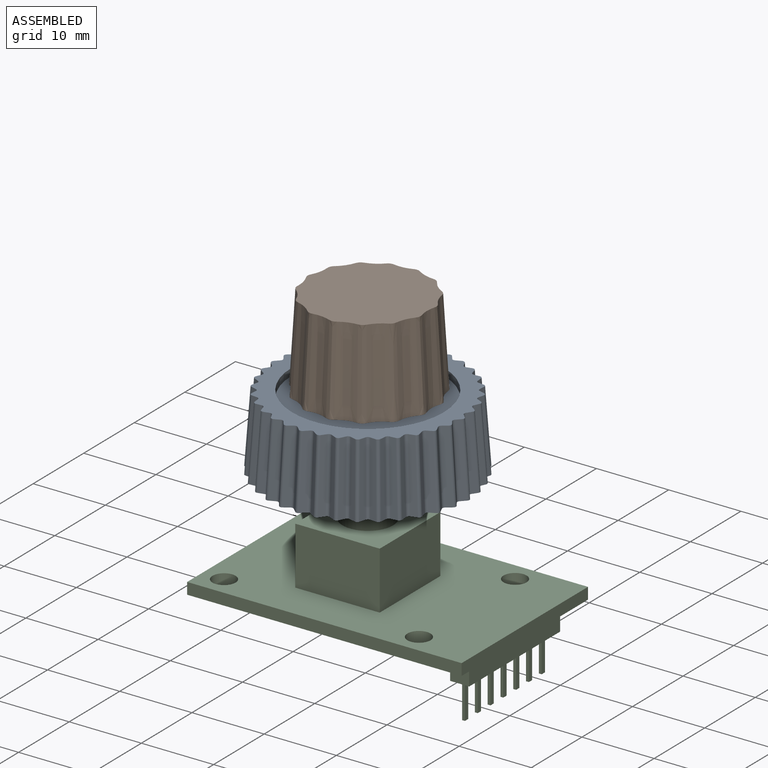
[diagram: assembled view]
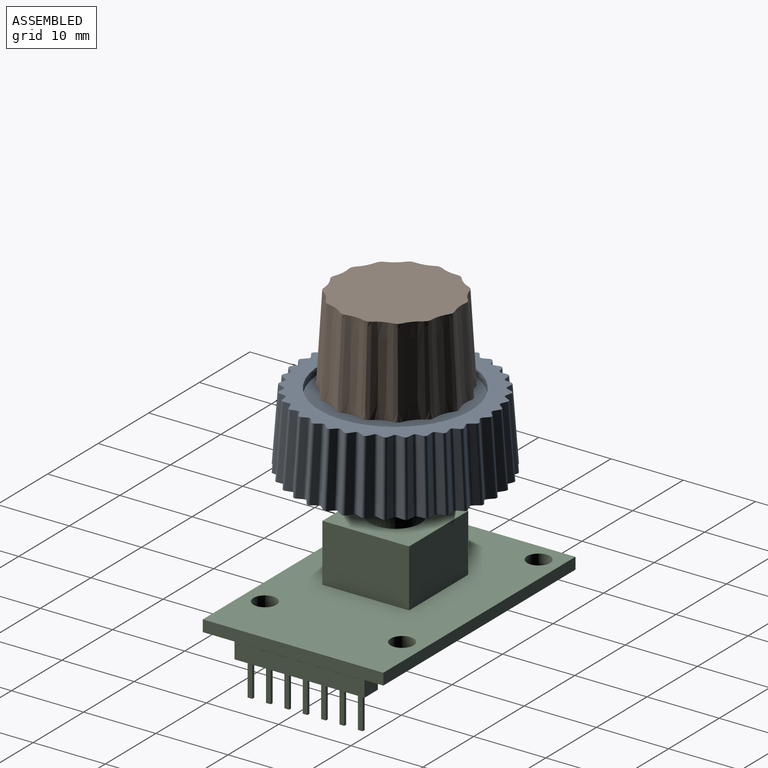
[diagram: assembled view, second angle]
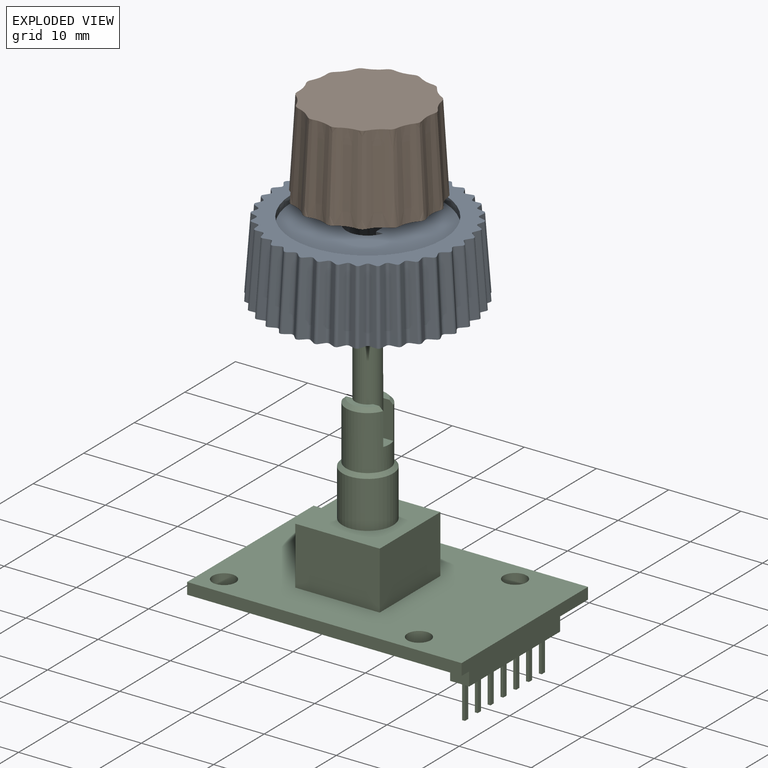
[diagram: exploded view]
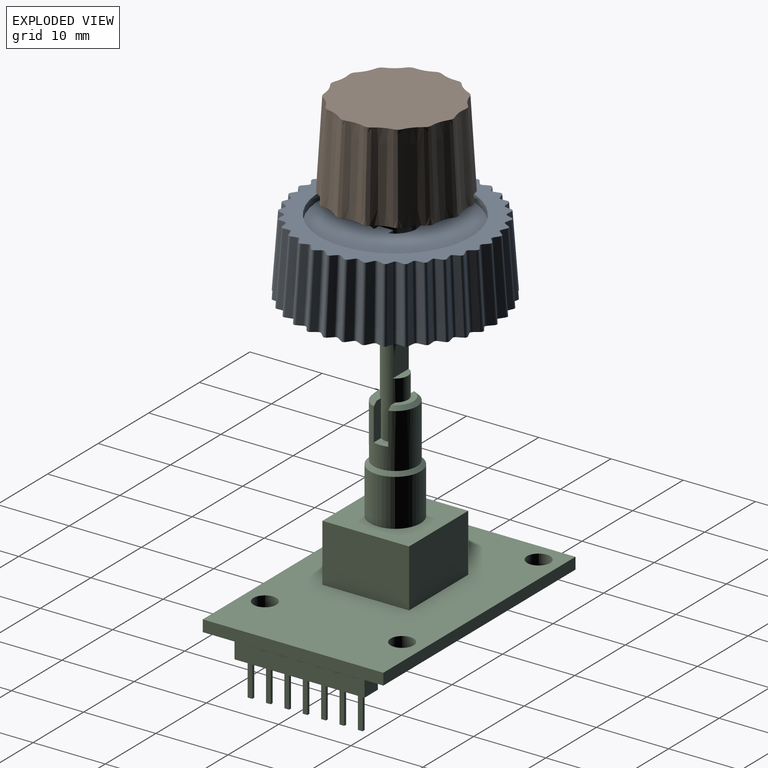
[diagram: exploded view, second angle]
ASSEMBLY  parts=3 mates=2
PART A: 159 faces, bbox 28.2x28.2x10 mm
  f0: cone r=3mm half-angle=2deg, axis (0,0,1), area 91.5mm2, adj f1,f2,f4,f5,f9,f10,f155,f157
  f1: plane 4x0.96mm, normal (0,1,0), area 3.6mm2, adj f0,f3,f9,f155
  f2: plane 4x0.96mm, normal (0,-1,0), area 3.6mm2, adj f0,f3,f9,f155
  f3: plane 4x2mm, normal (1,0,0), area 8mm2, adj f1,f2,f9,f155
  f4: plane 4x0.96mm, normal (0,1,0), area 3.6mm2, adj f0,f6,f10,f155
  f5: plane 4x0.96mm, normal (0,-1,0), area 3.6mm2, adj f0,f6,f10,f155
  f6: plane 4x2mm, normal (-1,0,0), area 8mm2, adj f4,f5,f10,f155
  f7: plane 28.16x28.16mm, normal (0,0,-1), area 537.4mm2, adj f11,f12,f13,f14,f15,f16,f17,f18
  f8: plane 26.71x26.71mm, normal (0,0,1), area 182.7mm2, adj f11,f12,f13,f14,f15,f16,f17,f18
  f9: plane 2x1mm, normal (0,0,-1), area 1.9mm2, adj f0,f1,f2,f3
  f10: plane 2x1mm, normal (0,0,-1), area 1.9mm2, adj f0,f4,f5,f6
  f11: plane 10x1.29mm, normal (0.72,0.69,0.05), area 8.5mm2, adj f7,f8,f83,f139
  f12: plane 10x1.29mm, normal (0.72,-0.69,0.05), area 8.5mm2, adj f7,f8,f84,f139
  f13: plane 10x1.17mm, normal (0.83,0.56,0.05), area 8.5mm2, adj f7,f8,f84,f138
  f14: plane 10x1.37mm, normal (0.59,0.81,0.05), area 8.5mm2, adj f7,f8,f85,f140
  f15: plane 10x1.17mm, normal (0.83,-0.56,0.05), area 8.5mm2, adj f7,f8,f83,f140
  f16: plane 10x1.41mm, normal (0.44,0.9,0.05), area 8.5mm2, adj f7,f8,f86,f141
  f17: plane 10x1.01mm, normal (0.91,-0.4,0.05), area 8.5mm2, adj f7,f8,f85,f141
  f18: plane 10x1.4mm, normal (0.28,0.96,0.05), area 8.5mm2, adj f7,f8,f87,f142
  f19: plane 10x1.15mm, normal (0.97,-0.24,0.05), area 8.5mm2, adj f7,f8,f86,f142
  f20: plane 10x1.36mm, normal (0.11,0.99,0.05), area 8.5mm2, adj f7,f8,f88,f143
  f21: plane 10x1.27mm, normal (1,-0.07,0.05), area 8.5mm2, adj f7,f8,f87,f143
  f22: plane 10x1.27mm, normal (-0.07,1,0.05), area 8.5mm2, adj f7,f8,f89,f144
  f23: plane 10x1.36mm, normal (0.99,0.11,0.05), area 8.5mm2, adj f7,f8,f88,f144
  f24: plane 10x1.15mm, normal (-0.24,0.97,0.05), area 8.5mm2, adj f7,f8,f90,f145
  f25: plane 10x1.4mm, normal (0.96,0.28,0.05), area 8.5mm2, adj f7,f8,f89,f145
  f26: plane 10x1.01mm, normal (-0.4,0.91,0.05), area 8.5mm2, adj f7,f8,f91,f146
  f27: plane 10x1.41mm, normal (0.9,0.44,0.05), area 8.5mm2, adj f7,f8,f90,f146
  f28: plane 10x1.17mm, normal (-0.56,0.83,0.05), area 8.5mm2, adj f7,f8,f92,f147
  f29: plane 10x1.37mm, normal (0.81,0.59,0.05), area 8.5mm2, adj f7,f8,f91,f147
  f30: plane 10x1.29mm, normal (-0.69,0.72,0.05), area 8.5mm2, adj f7,f8,f93,f148
  f31: plane 10x1.29mm, normal (0.69,0.72,0.05), area 8.5mm2, adj f7,f8,f92,f148
  f32: plane 10x1.37mm, normal (-0.81,0.59,0.05), area 8.5mm2, adj f7,f8,f94,f149
  f33: plane 10x1.17mm, normal (0.56,0.83,0.05), area 8.5mm2, adj f7,f8,f93,f149
  f34: plane 10x1.41mm, normal (-0.9,0.44,0.05), area 8.5mm2, adj f7,f8,f95,f150
  f35: plane 10x1.01mm, normal (0.4,0.91,0.05), area 8.5mm2, adj f7,f8,f94,f150
  f36: plane 10x1.4mm, normal (-0.96,0.28,0.05), area 8.5mm2, adj f7,f8,f96,f151
  f37: plane 10x1.15mm, normal (0.24,0.97,0.05), area 8.5mm2, adj f7,f8,f95,f151
  f38: plane 10x1.36mm, normal (-0.99,0.11,0.05), area 8.5mm2, adj f7,f8,f97,f152
  f39: plane 10x1.27mm, normal (0.07,1,0.05), area 8.5mm2, adj f7,f8,f96,f152
  f40: plane 10x1.27mm, normal (-1,-0.07,0.05), area 8.5mm2, adj f7,f8,f98,f153
  f41: plane 10x1.36mm, normal (-0.11,0.99,0.05), area 8.5mm2, adj f7,f8,f97,f153
  f42: plane 10x1.15mm, normal (-0.97,-0.24,0.05), area 8.5mm2, adj f7,f8,f99,f154
  f43: plane 10x1.4mm, normal (-0.28,0.96,0.05), area 8.5mm2, adj f7,f8,f98,f154
  f44: plane 10x1.01mm, normal (-0.91,-0.4,0.05), area 8.5mm2, adj f7,f8,f100,f119
  f45: plane 10x1.41mm, normal (-0.44,0.9,0.05), area 8.5mm2, adj f7,f8,f99,f119
  f46: plane 10x1.17mm, normal (-0.83,-0.56,0.05), area 8.5mm2, adj f7,f8,f101,f120
  f47: plane 10x1.37mm, normal (-0.59,0.81,0.05), area 8.5mm2, adj f7,f8,f100,f120
  f48: plane 10x1.29mm, normal (-0.72,-0.69,0.05), area 8.5mm2, adj f7,f8,f102,f121
  f49: plane 10x1.29mm, normal (-0.72,0.69,0.05), area 8.5mm2, adj f7,f8,f101,f121
  f50: plane 10x1.37mm, normal (-0.59,-0.81,0.05), area 8.5mm2, adj f7,f8,f103,f122
  f51: plane 10x1.17mm, normal (-0.83,0.56,0.05), area 8.5mm2, adj f7,f8,f102,f122
  f52: plane 10x1.41mm, normal (-0.44,-0.9,0.05), area 8.5mm2, adj f7,f8,f104,f123
  f53: plane 10x1.01mm, normal (-0.91,0.4,0.05), area 8.5mm2, adj f7,f8,f103,f123
  f54: plane 10x1.4mm, normal (-0.28,-0.96,0.05), area 8.5mm2, adj f7,f8,f105,f124
  f55: plane 10x1.15mm, normal (-0.97,0.24,0.05), area 8.5mm2, adj f7,f8,f104,f124
  f56: plane 10x1.36mm, normal (-0.11,-0.99,0.05), area 8.5mm2, adj f7,f8,f106,f125
  f57: plane 10x1.27mm, normal (-1,0.07,0.05), area 8.5mm2, adj f7,f8,f105,f125
  f58: plane 10x1.27mm, normal (0.07,-1,0.05), area 8.5mm2, adj f7,f8,f107,f126
  f59: plane 10x1.36mm, normal (-0.99,-0.11,0.05), area 8.5mm2, adj f7,f8,f106,f126
  f60: plane 10x1.15mm, normal (0.24,-0.97,0.05), area 8.5mm2, adj f7,f8,f108,f127
  f61: plane 10x1.4mm, normal (-0.96,-0.28,0.05), area 8.5mm2, adj f7,f8,f107,f127
  f62: plane 10x1.01mm, normal (0.4,-0.91,0.05), area 8.5mm2, adj f7,f8,f109,f128
  f63: plane 10x1.41mm, normal (-0.9,-0.44,0.05), area 8.5mm2, adj f7,f8,f108,f128
  f64: plane 10x1.17mm, normal (0.56,-0.83,0.05), area 8.5mm2, adj f7,f8,f110,f129
  f65: plane 10x1.37mm, normal (-0.81,-0.59,0.05), area 8.5mm2, adj f7,f8,f109,f129
  f66: plane 10x1.29mm, normal (0.69,-0.72,0.05), area 8.5mm2, adj f7,f8,f111,f130
  f67: plane 10x1.29mm, normal (-0.69,-0.72,0.05), area 8.5mm2, adj f7,f8,f110,f130
  f68: plane 10x1.37mm, normal (0.81,-0.59,0.05), area 8.5mm2, adj f7,f8,f112,f131
  f69: plane 10x1.17mm, normal (-0.56,-0.83,0.05), area 8.5mm2, adj f7,f8,f111,f131
  f70: plane 10x1.41mm, normal (0.9,-0.44,0.05), area 8.5mm2, adj f7,f8,f113,f132
  f71: plane 10x1.01mm, normal (-0.4,-0.91,0.05), area 8.5mm2, adj f7,f8,f112,f132
  f72: plane 10x1.4mm, normal (0.96,-0.28,0.05), area 8.5mm2, adj f7,f8,f114,f133
  f73: plane 10x1.15mm, normal (-0.24,-0.97,0.05), area 8.5mm2, adj f7,f8,f113,f133
  f74: plane 10x1.36mm, normal (0.99,-0.11,0.05), area 8.5mm2, adj f7,f8,f115,f134
  f75: plane 10x1.27mm, normal (-0.07,-1,0.05), area 8.5mm2, adj f7,f8,f114,f134
  f76: plane 10x1.27mm, normal (1,0.07,0.05), area 8.5mm2, adj f7,f8,f116,f135
  f77: plane 10x1.36mm, normal (0.11,-0.99,0.05), area 8.5mm2, adj f7,f8,f115,f135
  f78: plane 10x1.15mm, normal (0.97,0.24,0.05), area 8.5mm2, adj f7,f8,f117,f136
  f79: plane 10x1.4mm, normal (0.28,-0.96,0.05), area 8.5mm2, adj f7,f8,f116,f136
  f80: plane 10x1.01mm, normal (0.91,0.4,0.05), area 8.5mm2, adj f7,f8,f118,f137
  f81: plane 10x1.41mm, normal (0.44,-0.9,0.05), area 8.5mm2, adj f7,f8,f117,f137
  f82: plane 10x1.37mm, normal (0.59,-0.81,0.05), area 8.5mm2, adj f7,f8,f118,f138
  f83: cylinder r=0.4mm len=10.01mm, axis (0.07,0.01,-1), area 5.4mm2, adj f7,f8,f11,f15
  f84: cylinder r=0.4mm len=10.01mm, axis (-0.07,0.01,1), area 5.4mm2, adj f7,f8,f12,f13
  f85: cylinder r=0.4mm len=10.01mm, axis (0.06,0.02,-1), area 5.4mm2, adj f7,f8,f14,f17
  f86: cylinder r=0.4mm len=10.01mm, axis (0.06,0.03,-1), area 5.4mm2, adj f7,f8,f16,f19
  f87: cylinder r=0.4mm len=10.01mm, axis (0.06,0.04,-1), area 5.4mm2, adj f7,f8,f18,f21
  f88: cylinder r=0.4mm len=10.01mm, axis (0.05,0.05,-1), area 5.4mm2, adj f7,f8,f20,f23
  f89: cylinder r=0.4mm len=10.01mm, axis (0.04,0.06,-1), area 5.4mm2, adj f7,f8,f22,f25
  f90: cylinder r=0.4mm len=10.01mm, axis (0.03,0.06,-1), area 5.4mm2, adj f7,f8,f24,f27
  f91: cylinder r=0.4mm len=10.01mm, axis (0.02,0.06,-1), area 5.4mm2, adj f7,f8,f26,f29
  f92: cylinder r=0.4mm len=10.01mm, axis (0.01,0.07,-1), area 5.4mm2, adj f7,f8,f28,f31
  f93: cylinder r=0.4mm len=10.01mm, axis (-0.01,0.07,-1), area 5.4mm2, adj f7,f8,f30,f33
  f94: cylinder r=0.4mm len=10.01mm, axis (-0.02,0.06,-1), area 5.4mm2, adj f7,f8,f32,f35
  f95: cylinder r=0.4mm len=10.01mm, axis (-0.03,0.06,-1), area 5.4mm2, adj f7,f8,f34,f37
  f96: cylinder r=0.4mm len=10.01mm, axis (-0.04,0.06,-1), area 5.4mm2, adj f7,f8,f36,f39
  f97: cylinder r=0.4mm len=10.01mm, axis (-0.05,0.05,-1), area 5.4mm2, adj f7,f8,f38,f41
  f98: cylinder r=0.4mm len=10.01mm, axis (-0.06,0.04,-1), area 5.4mm2, adj f7,f8,f40,f43
  f99: cylinder r=0.4mm len=10.01mm, axis (-0.06,0.03,-1), area 5.4mm2, adj f7,f8,f42,f45
  f100: cylinder r=0.4mm len=10.01mm, axis (-0.06,0.02,-1), area 5.4mm2, adj f7,f8,f44,f47
  f101: cylinder r=0.4mm len=10.01mm, axis (-0.07,0.01,-1), area 5.4mm2, adj f7,f8,f46,f49
  f102: cylinder r=0.4mm len=10.01mm, axis (-0.07,-0.01,-1), area 5.4mm2, adj f7,f8,f48,f51
  f103: cylinder r=0.4mm len=10.01mm, axis (-0.06,-0.02,-1), area 5.4mm2, adj f7,f8,f50,f53
  f104: cylinder r=0.4mm len=10.01mm, axis (-0.06,-0.03,-1), area 5.4mm2, adj f7,f8,f52,f55
  f105: cylinder r=0.4mm len=10.01mm, axis (-0.06,-0.04,-1), area 5.4mm2, adj f7,f8,f54,f57
  f106: cylinder r=0.4mm len=10.01mm, axis (-0.05,-0.05,-1), area 5.4mm2, adj f7,f8,f56,f59
  f107: cylinder r=0.4mm len=10.01mm, axis (-0.04,-0.06,-1), area 5.4mm2, adj f7,f8,f58,f61
  f108: cylinder r=0.4mm len=10.01mm, axis (-0.03,-0.06,-1), area 5.4mm2, adj f7,f8,f60,f63
  f109: cylinder r=0.4mm len=10.01mm, axis (-0.02,-0.06,-1), area 5.4mm2, adj f7,f8,f62,f65
  f110: cylinder r=0.4mm len=10.01mm, axis (-0.01,-0.07,-1), area 5.4mm2, adj f7,f8,f64,f67
  f111: cylinder r=0.4mm len=10.01mm, axis (0.01,-0.07,-1), area 5.4mm2, adj f7,f8,f66,f69
  f112: cylinder r=0.4mm len=10.01mm, axis (0.02,-0.06,-1), area 5.4mm2, adj f7,f8,f68,f71
  f113: cylinder r=0.4mm len=10.01mm, axis (0.03,-0.06,-1), area 5.4mm2, adj f7,f8,f70,f73
  f114: cylinder r=0.4mm len=10.01mm, axis (0.04,-0.06,-1), area 5.4mm2, adj f7,f8,f72,f75
  f115: cylinder r=0.4mm len=10.01mm, axis (0.05,-0.05,-1), area 5.4mm2, adj f7,f8,f74,f77
  f116: cylinder r=0.4mm len=10.01mm, axis (0.06,-0.04,-1), area 5.4mm2, adj f7,f8,f76,f79
  f117: cylinder r=0.4mm len=10.01mm, axis (0.06,-0.03,-1), area 5.4mm2, adj f7,f8,f78,f81
  f118: cylinder r=0.4mm len=10.01mm, axis (0.06,-0.02,-1), area 5.4mm2, adj f7,f8,f80,f82
  f119: cylinder r=0.4mm len=10.01mm, axis (0.07,-0.02,1), area 6.1mm2, adj f7,f8,f44,f45
  f120: cylinder r=0.4mm len=10.01mm, axis (0.07,-0.01,1), area 6.1mm2, adj f7,f8,f46,f47
  f121: cylinder r=0.4mm len=10.01mm, axis (0.07,0,1), area 6.1mm2, adj f7,f8,f48,f49
  f122: cylinder r=0.4mm len=10.01mm, axis (0.07,0.01,1), area 6.1mm2, adj f7,f8,f50,f51
  f123: cylinder r=0.4mm len=10.01mm, axis (0.07,0.02,1), area 6.1mm2, adj f7,f8,f52,f53
  f124: cylinder r=0.4mm len=10.01mm, axis (0.06,0.04,1), area 6.1mm2, adj f7,f8,f54,f55
  f125: cylinder r=0.4mm len=10.01mm, axis (0.06,0.05,1), area 6.1mm2, adj f7,f8,f56,f57
  f126: cylinder r=0.4mm len=10.01mm, axis (0.05,0.06,1), area 6.1mm2, adj f7,f8,f58,f59
  f127: cylinder r=0.4mm len=10.01mm, axis (0.04,0.06,1), area 6.1mm2, adj f7,f8,f60,f61
  f128: cylinder r=0.4mm len=10.01mm, axis (0.02,0.07,1), area 6.1mm2, adj f7,f8,f62,f63
  f129: cylinder r=0.4mm len=10.01mm, axis (0.01,0.07,1), area 6.1mm2, adj f7,f8,f64,f65
  f130: cylinder r=0.4mm len=10.01mm, axis (0,0.07,1), area 6.1mm2, adj f7,f8,f66,f67
  f131: cylinder r=0.4mm len=10.01mm, axis (-0.01,0.07,1), area 6.1mm2, adj f7,f8,f68,f69
  f132: cylinder r=0.4mm len=10.01mm, axis (-0.02,0.07,1), area 6.1mm2, adj f7,f8,f70,f71
  f133: cylinder r=0.4mm len=10.01mm, axis (-0.04,0.06,1), area 6.1mm2, adj f7,f8,f72,f73
  f134: cylinder r=0.4mm len=10.01mm, axis (-0.05,0.06,1), area 6.1mm2, adj f7,f8,f74,f75
  f135: cylinder r=0.4mm len=10.01mm, axis (-0.06,0.05,1), area 6.1mm2, adj f7,f8,f76,f77
  f136: cylinder r=0.4mm len=10.01mm, axis (-0.06,0.04,1), area 6.1mm2, adj f7,f8,f78,f79
  f137: cylinder r=0.4mm len=10.01mm, axis (-0.07,0.02,1), area 6.1mm2, adj f7,f8,f80,f81
  f138: cylinder r=0.4mm len=10.01mm, axis (-0.07,0.01,1), area 6.1mm2, adj f7,f8,f13,f82
  f139: cylinder r=0.4mm len=10.01mm, axis (-0.07,0,1), area 6.1mm2, adj f7,f8,f11,f12
  f140: cylinder r=0.4mm len=10.01mm, axis (-0.07,-0.01,1), area 6.1mm2, adj f7,f8,f14,f15
  f141: cylinder r=0.4mm len=10.01mm, axis (-0.07,-0.02,1), area 6.1mm2, adj f7,f8,f16,f17
  f142: cylinder r=0.4mm len=10.01mm, axis (-0.06,-0.04,1), area 6.1mm2, adj f7,f8,f18,f19
  f143: cylinder r=0.4mm len=10.01mm, axis (-0.06,-0.05,1), area 6.1mm2, adj f7,f8,f20,f21
  f144: cylinder r=0.4mm len=10.01mm, axis (-0.05,-0.06,1), area 6.1mm2, adj f7,f8,f22,f23
  f145: cylinder r=0.4mm len=10.01mm, axis (-0.04,-0.06,1), area 6.1mm2, adj f7,f8,f24,f25
  f146: cylinder r=0.4mm len=10.01mm, axis (-0.02,-0.07,1), area 6.1mm2, adj f7,f8,f26,f27
  f147: cylinder r=0.4mm len=10.01mm, axis (-0.01,-0.07,1), area 6.1mm2, adj f7,f8,f28,f29
  f148: cylinder r=0.4mm len=10.01mm, axis (0,-0.07,1), area 6.1mm2, adj f7,f8,f30,f31
  f149: cylinder r=0.4mm len=10.01mm, axis (0.01,-0.07,1), area 6.1mm2, adj f7,f8,f32,f33
  f150: cylinder r=0.4mm len=10.01mm, axis (0.02,-0.07,1), area 6.1mm2, adj f7,f8,f34,f35
  f151: cylinder r=0.4mm len=10.01mm, axis (0.04,-0.06,1), area 6.1mm2, adj f7,f8,f36,f37
  f152: cylinder r=0.4mm len=10.01mm, axis (0.05,-0.06,1), area 6.1mm2, adj f7,f8,f38,f39
  f153: cylinder r=0.4mm len=10.01mm, axis (0.06,-0.05,1), area 6.1mm2, adj f7,f8,f40,f41
  f154: cylinder r=0.4mm len=10.01mm, axis (0.06,-0.04,1), area 6.1mm2, adj f7,f8,f42,f43
  f155: plane 21x21mm, normal (0,0,1), area 323.1mm2, adj f0,f1,f2,f3,f4,f5,f6,f156
  f156: cylinder r=10.5mm len=21mm, axis (0,0,1), area 66mm2, adj f8,f155
  f157: plane 8x8mm, normal (0,0,-1), area 26.4mm2, adj f0,f158
  f158: cylinder r=4mm len=8mm, axis (0,0,-1), area 75.4mm2, adj f7,f157
PART B: 37 faces, bbox 19.1x19.2x20.3 mm
  f0: plane 18.29x18.2mm, normal (0,0,-1), area 239.4mm2, adj f1,f6,f7,f8,f9,f10,f11,f12
  f1: cylinder r=1.75mm len=8.5mm, axis (0,0,-1), area 67.8mm2, adj f0,f3,f4,f5
  f2: plane 2.5x2mm, normal (0,0,-1), area 4.2mm2, adj f3,f5
  f3: cone r=1.25mm half-angle=45deg, axis (0,0,-1), area 4.5mm2, adj f1,f2,f5
  f4: plane 3.16x1mm, normal (0,0,-1), area 2.3mm2, adj f1,f5
  f5: plane 7.06x3.22mm, normal (0,-1,0), area 21.9mm2, adj f1,f2,f3,f4
  f6: cone r=4mm half-angle=3deg, axis (0,0,1), area 32.4mm2, adj f0,f21,f22,f23
  f7: cone r=4mm half-angle=3deg, axis (0,0,1), area 32.4mm2, adj f0,f21,f22,f36
  f8: cone r=4mm half-angle=3deg, axis (0,0,1), area 32.4mm2, adj f0,f21,f29,f36
  f9: cone r=4mm half-angle=3deg, axis (0,0,1), area 32.4mm2, adj f0,f21,f29,f35
  f10: cone r=4mm half-angle=3deg, axis (0,0,1), area 32.4mm2, adj f0,f21,f26,f35
  f11: cone r=4mm half-angle=3deg, axis (0,0,1), area 32.4mm2, adj f0,f21,f26,f34
  f12: cone r=4mm half-angle=3deg, axis (0,0,1), area 32.4mm2, adj f0,f21,f28,f34
  f13: cone r=4mm half-angle=3deg, axis (0,0,1), area 32.4mm2, adj f0,f21,f28,f33
  f14: cone r=4mm half-angle=3deg, axis (0,0,1), area 32.4mm2, adj f0,f21,f24,f33
  f15: cone r=4mm half-angle=3deg, axis (0,0,1), area 32.4mm2, adj f0,f21,f24,f32
  f16: cone r=4mm half-angle=3deg, axis (0,0,1), area 32.4mm2, adj f0,f21,f27,f32
  f17: cone r=4mm half-angle=3deg, axis (0,0,1), area 32.4mm2, adj f0,f21,f27,f31
  f18: cone r=4mm half-angle=3deg, axis (0,0,1), area 32.4mm2, adj f0,f21,f25,f31
  f19: cone r=4mm half-angle=3deg, axis (0,0,1), area 32.4mm2, adj f0,f21,f25,f30
  f20: cone r=4mm half-angle=3deg, axis (0,0,1), area 32.4mm2, adj f0,f21,f23,f30
  f21: plane 16.85x16.77mm, normal (0,0,1), area 212.9mm2, adj f6,f7,f8,f9,f10,f11,f12,f13
  f22: bspline ~20.22x1.59mm, area 12.5mm2, adj f0,f6,f7,f21
  f23: bspline ~16.53x1.37mm, area 12.5mm2, adj f0,f6,f20,f21
  f24: bspline ~20.22x1.53mm, area 12.5mm2, adj f0,f14,f15,f21
  f25: bspline ~20.22x1.56mm, area 12.5mm2, adj f0,f18,f19,f21
  f26: bspline ~20.22x1.56mm, area 12.5mm2, adj f0,f10,f11,f21
  f27: bspline ~20.22x1.53mm, area 12.5mm2, adj f0,f16,f17,f21
  f28: bspline ~20.22x1.53mm, area 12.5mm2, adj f0,f12,f13,f21
  f29: bspline ~20.22x1.53mm, area 12.5mm2, adj f0,f8,f9,f21
  f30: bspline ~20.22x1.55mm, area 12.5mm2, adj f0,f19,f20,f21
  f31: bspline ~20.22x1.59mm, area 12.5mm2, adj f0,f17,f18,f21
  f32: bspline ~20.22x1.58mm, area 12.5mm2, adj f0,f15,f16,f21
  f33: bspline ~20.22x1.58mm, area 12.5mm2, adj f0,f13,f14,f21
  f34: bspline ~20.22x1.59mm, area 12.5mm2, adj f0,f11,f12,f21
  f35: bspline ~20.22x1.55mm, area 12.5mm2, adj f0,f9,f10,f21
  f36: bspline ~20.22x1.59mm, area 12.5mm2, adj f0,f7,f8,f21
PART C: 73 faces, bbox 38.1x25.1x42.7 mm
  f0: plane 2x1.56mm, normal (0,0,1), area 2.6mm2, adj f2,f4,f5,f33
  f1: plane 5.02x1.41mm, normal (0,1,0), area 6.8mm2, adj f5,f6,f7,f32,f33
  f2: plane 5.02x1.41mm, normal (0,1,0), area 6.8mm2, adj f0,f5,f6,f7,f33
  f3: plane 5.02x1.41mm, normal (0,-1,0), area 6.8mm2, adj f5,f30,f31,f32,f33
  f4: plane 5.02x1.41mm, normal (0,-1,0), area 6.8mm2, adj f0,f5,f30,f31,f33
  f5: cylinder r=3mm len=7.5mm, axis (0,0,-1), area 123mm2, adj f0,f1,f2,f3,f4,f7,f29,f31
  f6: plane 4.58x1.5mm, normal (0,0,1), area 3.4mm2, adj f1,f2,f7,f33
  f7: cone r=2.5mm half-angle=45deg, axis (0,0,-1), area 4.7mm2, adj f1,f2,f5,f6
  f8: plane 38x25mm, normal (0,0,1), area 777.4mm2, adj f10,f11,f12,f13,f14,f15,f16,f17
  f9: plane 38x25mm, normal (0,0,-1), area 870.3mm2, adj f10,f11,f12,f13,f14,f15,f16,f17
  f10: plane 38x1.6mm, normal (0,1,0), area 60.8mm2, adj f8,f9,f11,f13
  f11: plane 25x1.6mm, normal (-1,0,0), area 40mm2, adj f8,f9,f10,f12
  f12: plane 38x1.6mm, normal (0,-1,0), area 60.8mm2, adj f8,f9,f11,f13
  f13: plane 25x1.6mm, normal (1,0,0), area 40mm2, adj f8,f9,f10,f12
  f14: cylinder r=1.6mm len=3.2mm, axis (0,0,-1), area 16.1mm2, adj f8,f9
  f15: cylinder r=1.6mm len=3.2mm, axis (0,0,-1), area 16.1mm2, adj f8,f9
  f16: cylinder r=1.6mm len=3.2mm, axis (0,0,-1), area 16.1mm2, adj f8,f9
  f17: cylinder r=1.6mm len=3.2mm, axis (0,0,-1), area 16.1mm2, adj f8,f9
  f18: plane 3x2.64mm, normal (0,1,0), area 7.9mm2, adj f9,f19,f21,f22
  f19: plane 18x3mm, normal (-1,0,0), area 54mm2, adj f9,f18,f20,f22
  f20: plane 3x2.64mm, normal (0,-1,0), area 7.9mm2, adj f9,f19,f21,f22
  f21: plane 18x3mm, normal (1,0,0), area 54mm2, adj f9,f18,f20,f22
  f22: plane 18x2.64mm, normal (0,0,-1), area 45.7mm2, adj f18,f19,f20,f21,f38,f39,f40,f41
  f23: plane 12x8mm, normal (1,0,0), area 96mm2, adj f8,f24,f26,f27
  f24: plane 11.7x8mm, normal (0,1,0), area 93.6mm2, adj f8,f23,f25,f27
  f25: plane 12x8mm, normal (-1,0,0), area 96mm2, adj f8,f24,f26,f27
  f26: plane 11.7x8mm, normal (0,-1,0), area 93.6mm2, adj f8,f23,f25,f27
  f27: plane 12x11.7mm, normal (0,0,1), area 101.9mm2, adj f23,f24,f25,f26,f28
  f28: cylinder r=3.5mm len=7mm, axis (0,0,-1), area 142.9mm2, adj f27,f29
  f29: cone r=3mm half-angle=45deg, axis (0,0,-1), area 14.4mm2, adj f5,f28
  f30: plane 4.58x1.5mm, normal (0,0,1), area 3.4mm2, adj f3,f4,f31,f33
  f31: cone r=2.5mm half-angle=45deg, axis (0,0,-1), area 4.7mm2, adj f3,f4,f5,f30
  f32: plane 2x1.56mm, normal (0,0,1), area 2.6mm2, adj f1,f3,f5,f33
  f33: cylinder r=1.75mm len=14.5mm, axis (0,0,-1), area 100.1mm2, adj f0,f1,f2,f3,f4,f6,f30,f32
  f34: plane 2.5x2mm, normal (0,0,1), area 4.2mm2, adj f35,f37
  f35: cone r=1.25mm half-angle=45deg, axis (0,0,-1), area 4.5mm2, adj f33,f34,f37
  f36: plane 3.16x1mm, normal (0,0,1), area 2.3mm2, adj f33,f37
  f37: plane 7.06x3.22mm, normal (0,1,0), area 21.9mm2, adj f33,f34,f35,f36
  f38: plane 5x0.39mm, normal (0,-1,0), area 2mm2, adj f22,f39,f41,f42
  f39: plane 5x0.65mm, normal (-1,0,0), area 3.2mm2, adj f22,f38,f40,f42
  f40: plane 5x0.39mm, normal (0,1,0), area 2mm2, adj f22,f39,f41,f42
  f41: plane 5x0.65mm, normal (1,0,0), area 3.2mm2, adj f22,f38,f40,f42
  f42: plane 0.65x0.39mm, normal (0,0,-1), area 0.3mm2, adj f38,f39,f40,f41
  f43: plane 5x0.65mm, normal (1,0,0), area 3.2mm2, adj f22,f44,f46,f47
  f44: plane 5x0.39mm, normal (0,-1,0), area 2mm2, adj f22,f43,f45,f47
  f45: plane 5x0.65mm, normal (-1,0,0), area 3.2mm2, adj f22,f44,f46,f47
  f46: plane 5x0.39mm, normal (0,1,0), area 2mm2, adj f22,f43,f45,f47
  f47: plane 0.65x0.39mm, normal (0,0,-1), area 0.3mm2, adj f43,f44,f45,f46
  f48: plane 5x0.65mm, normal (1,0,0), area 3.2mm2, adj f22,f49,f51,f52
  f49: plane 5x0.39mm, normal (0,-1,0), area 2mm2, adj f22,f48,f50,f52
  f50: plane 5x0.65mm, normal (-1,0,0), area 3.2mm2, adj f22,f49,f51,f52
  f51: plane 5x0.39mm, normal (0,1,0), area 2mm2, adj f22,f48,f50,f52
  f52: plane 0.65x0.39mm, normal (0,0,-1), area 0.3mm2, adj f48,f49,f50,f51
  f53: plane 5x0.65mm, normal (1,0,0), area 3.2mm2, adj f22,f54,f56,f57
  f54: plane 5x0.39mm, normal (0,-1,0), area 2mm2, adj f22,f53,f55,f57
  f55: plane 5x0.65mm, normal (-1,0,0), area 3.2mm2, adj f22,f54,f56,f57
  f56: plane 5x0.39mm, normal (0,1,0), area 2mm2, adj f22,f53,f55,f57
  f57: plane 0.65x0.39mm, normal (0,0,-1), area 0.3mm2, adj f53,f54,f55,f56
  f58: plane 5x0.65mm, normal (1,0,0), area 3.2mm2, adj f22,f59,f61,f62
  f59: plane 5x0.39mm, normal (0,-1,0), area 2mm2, adj f22,f58,f60,f62
  f60: plane 5x0.65mm, normal (-1,0,0), area 3.2mm2, adj f22,f59,f61,f62
  f61: plane 5x0.39mm, normal (0,1,0), area 2mm2, adj f22,f58,f60,f62
  f62: plane 0.65x0.39mm, normal (0,0,-1), area 0.3mm2, adj f58,f59,f60,f61
  f63: plane 5x0.65mm, normal (1,0,0), area 3.2mm2, adj f22,f64,f66,f67
  f64: plane 5x0.39mm, normal (0,-1,0), area 2mm2, adj f22,f63,f65,f67
  f65: plane 5x0.65mm, normal (-1,0,0), area 3.2mm2, adj f22,f64,f66,f67
  f66: plane 5x0.39mm, normal (0,1,0), area 2mm2, adj f22,f63,f65,f67
  f67: plane 0.65x0.39mm, normal (0,0,-1), area 0.3mm2, adj f63,f64,f65,f66
  f68: plane 5x0.65mm, normal (1,0,0), area 3.2mm2, adj f22,f69,f71,f72
  f69: plane 5x0.39mm, normal (0,-1,0), area 2mm2, adj f22,f68,f70,f72
  f70: plane 5x0.65mm, normal (-1,0,0), area 3.2mm2, adj f22,f69,f71,f72
  f71: plane 5x0.39mm, normal (0,1,0), area 2mm2, adj f22,f68,f70,f72
  f72: plane 0.65x0.39mm, normal (0,0,-1), area 0.3mm2, adj f68,f69,f70,f71
PLACE A t=(-20.78,1.62,6.24)mm
PLACE B t=(-20.78,1.77,6.24)mm
PLACE C t=(-20.78,1.62,6.24)mm
MATE fastened A.f0 <-> C.f5  axis (0,0,1) through (-20.78,1.62,30.84)mm
MATE fastened B.f2 <-> C.f33  axis (0,0,-1) through (-20.78,1.62,40.84)mm
